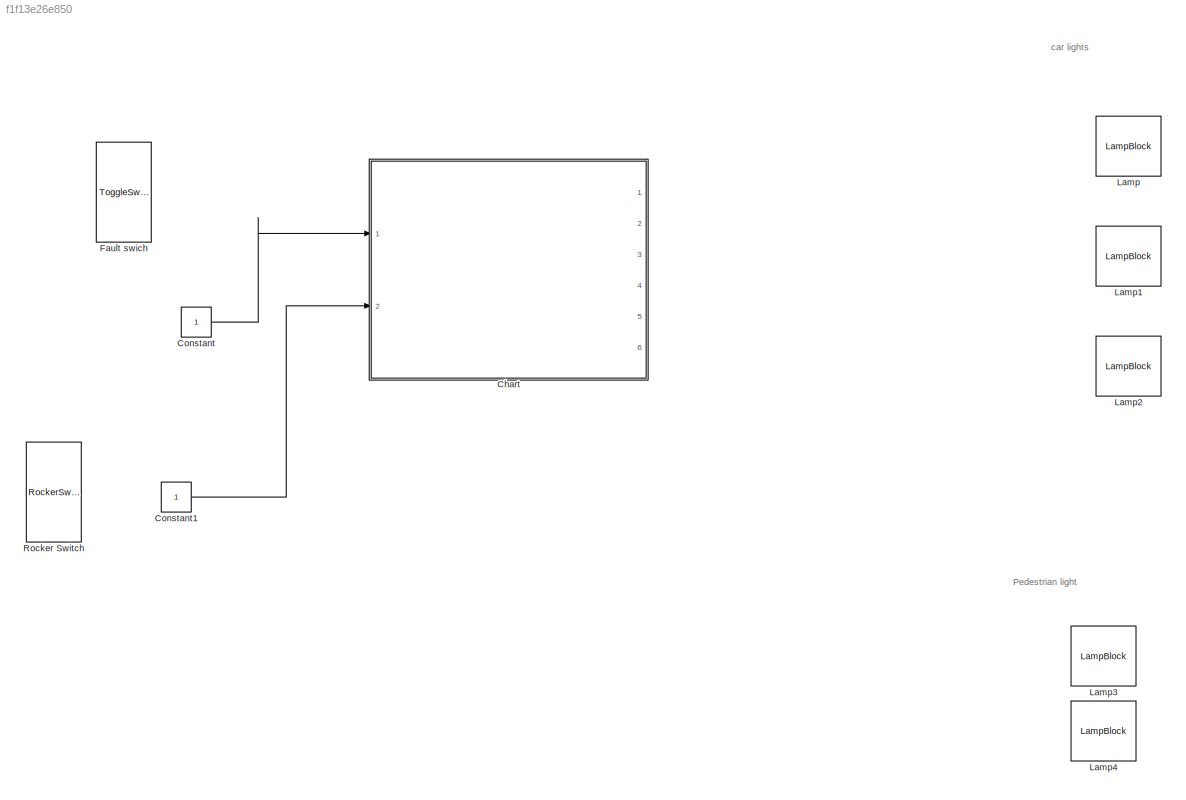
MODEL slx_f1f13e26e850
KIND model
CONFIG AbsTol = auto
CONFIG EnableMultiTasking = off
CONFIG FixedStep = auto
CONFIG MaxStep = auto
CONFIG MinStep = auto
CONFIG RelTol = 1e-3
CONFIG SampleTimeConstraint = Unconstrained
CONFIG SolverName = VariableStepAuto
CONFIG StartTime = 0.0
CONFIG StopTime = 300
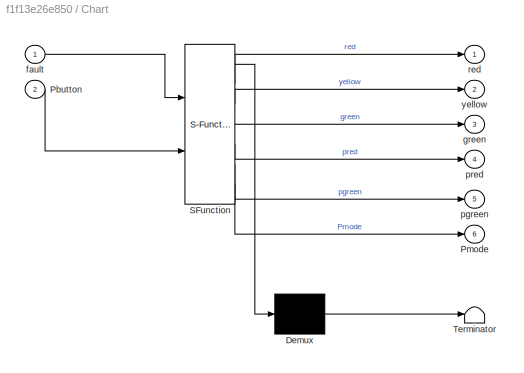
BLOCK [SubSystem] Chart
  ErrorFcn = Stateflow.Translate.translate
  PermitHierarchicalResolution = ExplicitOnly
  Ports = [2, 6]
  RequestExecContextInheritance = off
  SFBlockType = Chart
  TreatAsAtomicUnit = on
BLOCK [Demux] Chart/ Demux 
  Outputs = 1
  Ports = [1, 1]
BLOCK [S-Function] Chart/ SFunction 
  EnableBusSupport = on
  FunctionName = sf_sfun
  PortCounts = [2 7]
  Ports = [2, 7]
  SFcnIsStateOwnerBlock = off
  SFunctionDeploymentMode = off
  Tag = Stateflow S-Function 3
BLOCK [Terminator] Chart/ Terminator 
BLOCK [Inport] Chart/Pbutton
  Port = 2
BLOCK [Outport] Chart/Pmode
  Port = 6
BLOCK [Inport] Chart/fault
BLOCK [Outport] Chart/green
  Port = 3
BLOCK [Outport] Chart/pgreen
  Port = 5
BLOCK [Outport] Chart/pred
  Port = 4
BLOCK [Outport] Chart/red
BLOCK [Outport] Chart/yellow
  Port = 2
BLOCK [Constant] Constant
BLOCK [Constant] Constant1
BLOCK [ToggleSwitchBlock] Fault swich
  Description = Fault switch
BLOCK [LampBlock] Lamp
BLOCK [LampBlock] Lamp1
BLOCK [LampBlock] Lamp2
BLOCK [LampBlock] Lamp3
BLOCK [LampBlock] Lamp4
BLOCK [RockerSwitchBlock] Rocker Switch
ANNOTATION (root): Pedestrian light
ANNOTATION (root): car lights
LINE Constant1:1 -> Chart:2
LINE Constant:1 -> Chart:1
CHART Chart states=12 transitions=24
  STATE_LABEL 'Norm'
  STATE_LABEL 'Pstop\nentry:\nred = 0;\nyellow = 1;\ngreen= 0;'
  STATE_LABEL 'Go\nentry:\nred = 0;\nyellow = 0;\ngreen= 1;\n'
  STATE_LABEL 'Stop\nentry:\nred = 1;\nyellow = 0;\ngreen= 0;\n'
  STATE_LABEL 'Initial_state\nentry:\nred = 0;\nyellow = 0;\ngreen= 0;\nPmode = 0;\npred = 1;\npgreen = 0'
  STATE_LABEL 'Pmode2\nentry :\nPmode = 1;\npred = 1;\npgreen = 0;\n'
  STATE_LABEL 'pStop\nentry :\npred = 1;\npgreen = 0;\nPmode = 0;\n'
  STATE_LABEL 'pGo\nentry:\npred = 0;\npgreen = 1;\ngreen = 0;\nyellow = 0;\nred = 1;'
  STATE_LABEL 'after(1,sec)'
  STATE_LABEL '[Pmode == 0]'
  STATE_LABEL 'after(10,sec)'
  STATE_LABEL '[Pmode == 0]'
  STATE_LABEL 'after(2,sec)'
  STATE_LABEL '{Pbutton == 1}'
  STATE_LABEL 'after(30,sec)'
  STATE_LABEL '[Pbutton == 1]'
  STATE_LABEL '[Pmode ==0]'
  STATE_LABEL 'after(2,sec)'
  STATE_LABEL '{Pbutton == 1}'
  STATE_LABEL '[Pbutton ==1]'
  STATE_LABEL 'after(10,sec)'
  STATE_LABEL 'after(10,sec)'
  STATE_LABEL 'Pstop\nentry:\nred = 0;\nyellow = 1;\ngreen= 0;'
  STATE_LABEL 'Go\nentry:\nred = 0;\nyellow = 0;\ngreen= 1;\n'
  STATE_LABEL 'Stop\nentry:\nred = 1;\nyellow = 0;\ngreen= 0;\n'
  STATE_LABEL 'Initial_state\nentry:\nred = 0;\nyellow = 0;\ngreen= 0;\nPmode = 0;\npred = 1;\npgreen = 0'
  STATE_LABEL 'Pmode2\nentry :\nPmode = 1;\npred = 1;\npgreen = 0;\n'
  STATE_LABEL 'pStop\nentry :\npred = 1;\npgreen = 0;\nPmode = 0;\n'
  STATE_LABEL 'pGo\nentry:\npred = 0;\npgreen = 1;\ngreen = 0;\nyellow = 0;\nred = 1;'
  STATE_LABEL 'Decidestate\n'
  STATE_LABEL 'faultstate\n\n'
  STATE_LABEL 'Stop\nentry:\nred = 0;\nyellow = 0;\ngreen= 0;\npred = 0;\n'
  STATE_LABEL 'F2\nentry:\nyellow= 1'
  STATE_LABEL 'after(1,sec)'
  STATE_LABEL 'after(1,sec)'
  STATE_LABEL 'Stop\nentry:\nred = 0;\nyellow = 0;\ngreen= 0;\npred = 0;\n'
  STATE_LABEL 'F2\nentry:\nyellow= 1'
CHART  states=0 transitions=0
